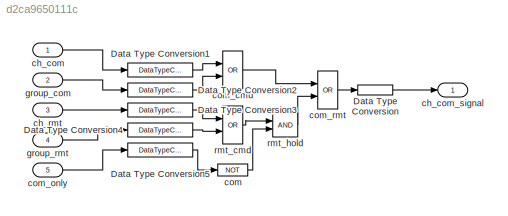
MODEL slx_d2ca9650111c
KIND model
BLOCK [DataTypeConversion] Data Type Conversion
  OutDataTypeStr = int16
  RndMeth = Floor
  SaturateOnIntegerOverflow = off
BLOCK [DataTypeConversion] Data Type Conversion1
  OutDataTypeStr = boolean
  RndMeth = Floor
  SaturateOnIntegerOverflow = off
BLOCK [DataTypeConversion] Data Type Conversion2
  OutDataTypeStr = boolean
  RndMeth = Floor
  SaturateOnIntegerOverflow = off
BLOCK [DataTypeConversion] Data Type Conversion3
  OutDataTypeStr = boolean
  RndMeth = Floor
  SaturateOnIntegerOverflow = off
BLOCK [DataTypeConversion] Data Type Conversion4
  OutDataTypeStr = boolean
  RndMeth = Floor
  SaturateOnIntegerOverflow = off
BLOCK [DataTypeConversion] Data Type Conversion5
  OutDataTypeStr = boolean
  RndMeth = Floor
  SaturateOnIntegerOverflow = off
BLOCK [Inport] ch_com
  OutDataTypeStr = int16
BLOCK [Outport] ch_com_signal
  OutDataTypeStr = int16
BLOCK [Inport] ch_rmt
  OutDataTypeStr = int16
  Port = 3
BLOCK [Logic] com
  AllPortsSameDT = off
  Operator = NOT
  OutDataTypeStr = boolean
  Ports = [1, 1]
BLOCK [Logic] com_cmd
  AllPortsSameDT = off
  Operator = OR
  OutDataTypeStr = boolean
  Ports = [2, 1]
BLOCK [Inport] com_only
  OutDataTypeStr = int16
  Port = 5
BLOCK [Logic] com_rmt
  AllPortsSameDT = off
  Operator = OR
  OutDataTypeStr = boolean
  Ports = [2, 1]
BLOCK [Inport] group_com
  OutDataTypeStr = int16
  Port = 2
BLOCK [Inport] group_rmt
  OutDataTypeStr = int16
  Port = 4
BLOCK [Logic] rmt_cmd
  AllPortsSameDT = off
  Operator = OR
  OutDataTypeStr = boolean
  Ports = [2, 1]
BLOCK [Logic] rmt_hold
  AllPortsSameDT = off
  OutDataTypeStr = boolean
  Ports = [2, 1]
LINE Data Type Conversion1:1 -> com_cmd:1
LINE Data Type Conversion2:1 -> com_cmd:2
LINE Data Type Conversion3:1 -> rmt_cmd:1
LINE Data Type Conversion4:1 -> rmt_cmd:2
LINE Data Type Conversion5:1 -> com:1
LINE Data Type Conversion:1 -> ch_com_signal:1
LINE ch_com:1 -> Data Type Conversion1:1
LINE ch_rmt:1 -> Data Type Conversion3:1
LINE com:1 -> rmt_hold:2
LINE com_cmd:1 -> com_rmt:1
LINE com_only:1 -> Data Type Conversion5:1
LINE com_rmt:1 -> Data Type Conversion:1
LINE group_com:1 -> Data Type Conversion2:1
LINE group_rmt:1 -> Data Type Conversion4:1
LINE rmt_cmd:1 -> rmt_hold:1
LINE rmt_hold:1 -> com_rmt:2
